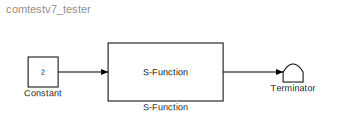
MODEL comtestv7_tester
KIND model
BLOCK [Constant] Constant
  OutDataType = fixdt(1, 16)
  OutDataTypeMode = int32
  OutDataTypeStr = int32
  OutScaling = 2^0
  Value = 2
BLOCK [S-Function] S-Function
  EnableBusSupport = off
  FunctionName = comtestv7_sfun
  Ports = [1, 1]
BLOCK [Terminator] Terminator
LINE Constant:1 -> S-Function:1
LINE S-Function:1 -> Terminator:1
